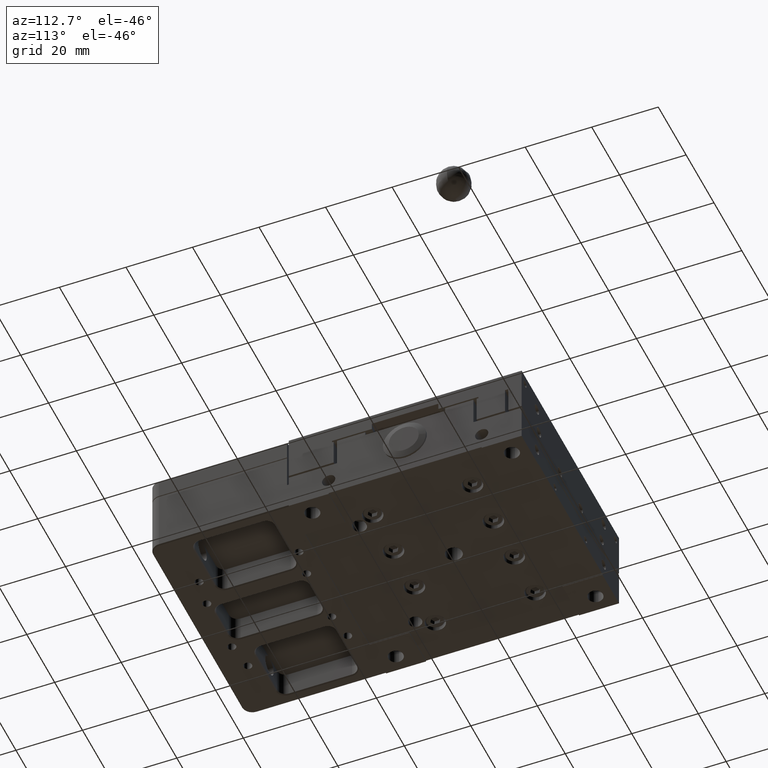
[diagram: clean part render]
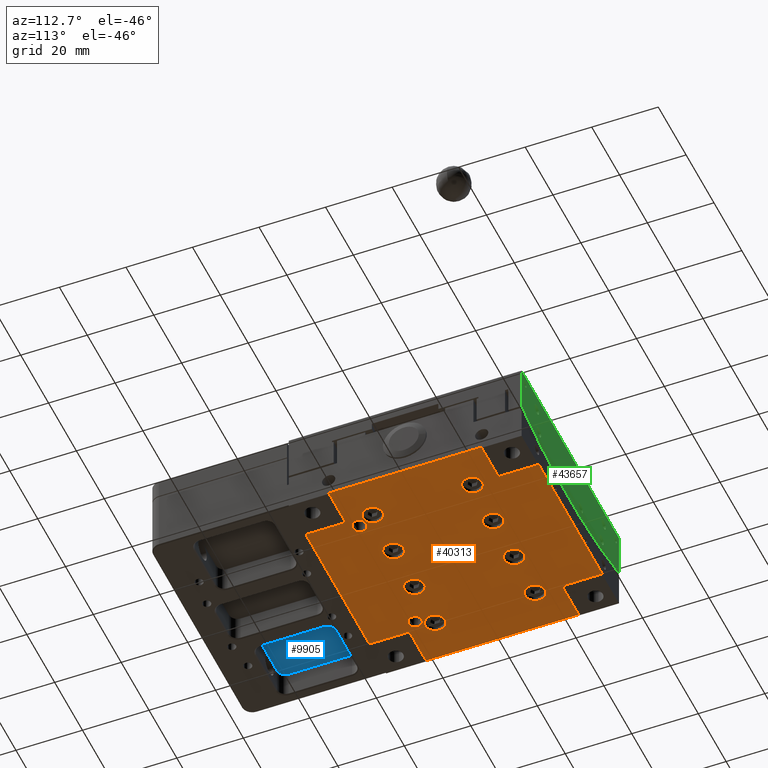
[diagram: same view with three faces highlighted in distinct colors, each labeled with its STEP entity id]
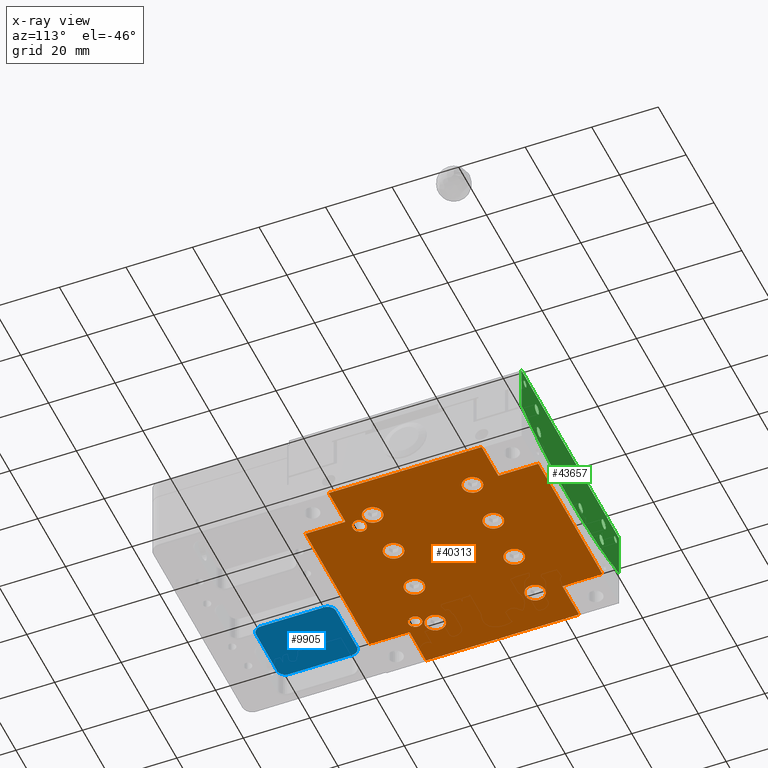
[diagram: x-ray of the same camera — body ghosted, the three highlighted faces saturated]
A machine part, auxiliary view with three faces highlighted in distinct colors.
The next image is the same camera in x-ray (body ghosted, the three faces saturated) — at least one of them is partly hidden behind the body in this view.
Their STEP definitions:

[orange] entity #40313 — the highlighted planar face has unit normal (0, 0, -1).
#13 = CARTESIAN_POINT ( 'NONE',  ( 22.99999995231683800, 35.00000000000000000, 0.3000000000000001000 ) ) ;
#101 = EDGE_LOOP ( 'NONE', ( #70234, #1774 ) ) ;
#223 = EDGE_LOOP ( 'NONE', ( #36987, #15831 ) ) ;
#718 = CARTESIAN_POINT ( 'NONE',  ( 7.500000000000000000, -15.00000000000000000, 0.3000000000000000400 ) ) ;
#1053 = ORIENTED_EDGE ( 'NONE', *, *, #77049, .F. ) ;
#1384 = ORIENTED_EDGE ( 'NONE', *, *, #79097, .F. ) ;
#1708 = ORIENTED_EDGE ( 'NONE', *, *, #10360, .F. ) ;
#1774 = ORIENTED_EDGE ( 'NONE', *, *, #6002, .F. ) ;
#1913 = CARTESIAN_POINT ( 'NONE',  ( 35.00000000000000000, 23.00000000000000000, 0.3000000000000008200 ) ) ;
#2263 = DIRECTION ( 'NONE',  ( 1.000000000000000000, 0.0000000000000000000, 0.0000000000000000000 ) ) ;
#2513 = AXIS2_PLACEMENT_3D ( 'NONE', #80586, #41478, #2263 ) ;
#2934 = ORIENTED_EDGE ( 'NONE', *, *, #78501, .F. ) ;
#3202 = EDGE_CURVE ( 'NONE', #74426, #28322, #81244, .T. ) ;
#3409 = VECTOR ( 'NONE', #82227, 1000.000000000000000 ) ;
#3435 = VERTEX_POINT ( 'NONE', #75863 ) ;
#3595 = ORIENTED_EDGE ( 'NONE', *, *, #37338, .F. ) ;
#3908 = DIRECTION ( 'NONE',  ( 1.000000000000000000, 0.0000000000000000000, 0.0000000000000000000 ) ) ;
#4968 = LINE ( 'NONE', #34351, #22397 ) ;
#5285 = CARTESIAN_POINT ( 'NONE',  ( -10.50000000000000200, 15.00000000000000000, 0.3000000000000000400 ) ) ;
#5490 = DIRECTION ( 'NONE',  ( 0.0000000000000000000, -1.000000000000000000, 0.0000000000000000000 ) ) ;
#5593 = EDGE_CURVE ( 'NONE', #13600, #77717, #65010, .T. ) ;
#6002 = EDGE_CURVE ( 'NONE', #80857, #10327, #70997, .T. ) ;
#6695 = VERTEX_POINT ( 'NONE', #44490 ) ;
#7048 = CIRCLE ( 'NONE', #37797, 1.999999999999998200 ) ;
#7141 = VERTEX_POINT ( 'NONE', #58052 ) ;
#7230 = PLANE ( 'NONE',  #69119 ) ;
#7268 = DIRECTION ( 'NONE',  ( 1.000000000000000000, 0.0000000000000000000, 0.0000000000000000000 ) ) ;
#7289 = CARTESIAN_POINT ( 'NONE',  ( -19.50000000000000000, -15.00000000000000000, 0.3000000000000000400 ) ) ;
#7503 = EDGE_CURVE ( 'NONE', #35767, #56087, #14414, .T. ) ;
#7900 = DIRECTION ( 'NONE',  ( 0.0000000000000000000, 0.0000000000000000000, 1.000000000000000000 ) ) ;
#8075 = LINE ( 'NONE', #39262, #23474 ) ;
#8108 = CIRCLE ( 'NONE', #27560, 2.999999999999999100 ) ;
#8131 = EDGE_CURVE ( 'NONE', #7141, #30030, #8075, .T. ) ;
#8252 = AXIS2_PLACEMENT_3D ( 'NONE', #73024, #33932, #79638 ) ;
#8405 = CIRCLE ( 'NONE', #22085, 3.000000000000002700 ) ;
#9901 = ORIENTED_EDGE ( 'NONE', *, *, #32201, .F. ) ;
#9916 = LINE ( 'NONE', #26985, #44719 ) ;
#10057 = LINE ( 'NONE', #50277, #77544 ) ;
#10237 = LINE ( 'NONE', #24759, #77728 ) ;
#10327 = VERTEX_POINT ( 'NONE', #58825 ) ;
#10360 = EDGE_CURVE ( 'NONE', #67273, #19604, #58888, .T. ) ;
#10371 = DIRECTION ( 'NONE',  ( -0.0000000000000000000, -0.0000000000000000000, -1.000000000000000000 ) ) ;
#10387 = CIRCLE ( 'NONE', #8252, 3.000000000000002700 ) ;
#11110 = DIRECTION ( 'NONE',  ( -1.000000000000000000, 0.0000000000000000000, 0.0000000000000000000 ) ) ;
#11438 = ORIENTED_EDGE ( 'NONE', *, *, #29188, .F. ) ;
#11713 = ORIENTED_EDGE ( 'NONE', *, *, #16800, .F. ) ;
#12147 = VERTEX_POINT ( 'NONE', #1913 ) ;
#12410 = DIRECTION ( 'NONE',  ( -0.0000000000000000000, -0.0000000000000000000, -1.000000000000000000 ) ) ;
#12582 = CARTESIAN_POINT ( 'NONE',  ( 20.25000031719999800, -18.00000000000000400, 0.3000000000000003800 ) ) ;
#12660 = CARTESIAN_POINT ( 'NONE',  ( 19.74999999999999600, -22.00000000000000000, 0.2999999999999997700 ) ) ;
#12918 = CARTESIAN_POINT ( 'NONE',  ( 35.00000000000000000, 36.39999999999999900, 0.3000000000000016500 ) ) ;
#12966 = CIRCLE ( 'NONE', #44089, 3.000000000000002700 ) ;
#13315 = VERTEX_POINT ( 'NONE', #55373 ) ;
#13600 = VERTEX_POINT ( 'NONE', #5285 ) ;
#13694 = DIRECTION ( 'NONE',  ( -1.000000000000000000, 0.0000000000000000000, 0.0000000000000000000 ) ) ;
#13796 = EDGE_CURVE ( 'NONE', #10327, #80857, #81492, .T. ) ;
#13985 = VERTEX_POINT ( 'NONE', #76037 ) ;
#14159 = AXIS2_PLACEMENT_3D ( 'NONE', #71325, #32208, #77880 ) ;
#14414 = CIRCLE ( 'NONE', #32949, 2.500000000000000000 ) ;
#15535 = CARTESIAN_POINT ( 'NONE',  ( -35.00000000000000000, -23.00000000000000000, 0.3000000000000000400 ) ) ;
#15831 = ORIENTED_EDGE ( 'NONE', *, *, #73987, .T. ) ;
#15871 = DIRECTION ( 'NONE',  ( -0.0000000000000000000, -0.0000000000000000000, -1.000000000000000000 ) ) ;
#16167 = CARTESIAN_POINT ( 'NONE',  ( -20.00000000000000000, -20.00000000000000000, 0.3000000000000000400 ) ) ;
#16228 = VERTEX_POINT ( 'NONE', #54804 ) ;
#16362 = DIRECTION ( 'NONE',  ( -0.0000000000000000000, -0.0000000000000000000, -1.000000000000000000 ) ) ;
#16535 = FACE_BOUND ( 'NONE', #81110, .T. ) ;
#16542 = VERTEX_POINT ( 'NONE', #7289 ) ;
#16548 = VERTEX_POINT ( 'NONE', #40209 ) ;
#16800 = EDGE_CURVE ( 'NONE', #73803, #35531, #8405, .T. ) ;
#17239 = EDGE_LOOP ( 'NONE', ( #2934, #11438 ) ) ;
#17326 = AXIS2_PLACEMENT_3D ( 'NONE', #58650, #19522, #65257 ) ;
#17768 = EDGE_CURVE ( 'NONE', #20114, #41619, #44935, .T. ) ;
#18153 = ORIENTED_EDGE ( 'NONE', *, *, #7503, .F. ) ;
#18587 = FACE_BOUND ( 'NONE', #223, .T. ) ;
#18590 = CARTESIAN_POINT ( 'NONE',  ( -18.00000000000000400, -20.00000000000000000, 0.3000000000000000400 ) ) ;
#18955 = CIRCLE ( 'NONE', #62914, 2.999999999999999100 ) ;
#19522 = DIRECTION ( 'NONE',  ( 0.0000000000000000000, 2.168404344971008600E-016, -1.000000000000000000 ) ) ;
#19604 = VERTEX_POINT ( 'NONE', #12582 ) ;
#19921 = ORIENTED_EDGE ( 'NONE', *, *, #46471, .F. ) ;
#20114 = VERTEX_POINT ( 'NONE', #18590 ) ;
#20146 = CARTESIAN_POINT ( 'NONE',  ( -22.99999995231683400, -23.00000000000000000, 0.3000000000000001000 ) ) ;
#20639 = CARTESIAN_POINT ( 'NONE',  ( -4.499999999999997300, 15.00000000000000000, 0.3000000000000000400 ) ) ;
#21132 = CIRCLE ( 'NONE', #27972, 2.000000000000001800 ) ;
#22038 = EDGE_LOOP ( 'NONE', ( #74035, #60995 ) ) ;
#22039 = CARTESIAN_POINT ( 'NONE',  ( 22.99999995231683400, 23.00000000000000000, 0.3000000000000001000 ) ) ;
#22085 = AXIS2_PLACEMENT_3D ( 'NONE', #49522, #10371, #56140 ) ;
#22392 = AXIS2_PLACEMENT_3D ( 'NONE', #718, #46466, #7268 ) ;
#22397 = VECTOR ( 'NONE', #73465, 1000.000000000000000 ) ;
#22662 = DIRECTION ( 'NONE',  ( -0.0000000000000000000, -0.0000000000000000000, -1.000000000000000000 ) ) ;
#22676 = ORIENTED_EDGE ( 'NONE', *, *, #40612, .F. ) ;
#22778 = DIRECTION ( 'NONE',  ( 1.000000000000000000, 0.0000000000000000000, 0.0000000000000000000 ) ) ;
#22855 = AXIS2_PLACEMENT_3D ( 'NONE', #67525, #28437, #74107 ) ;
#23474 = VECTOR ( 'NONE', #71791, 1000.000000000000000 ) ;
#24386 = VECTOR ( 'NONE', #39230, 1000.000000000000000 ) ;
#24759 = CARTESIAN_POINT ( 'NONE',  ( 22.75999999999999800, -22.99999995231683400, 0.3000000000000001600 ) ) ;
#25675 = DIRECTION ( 'NONE',  ( -0.0000000000000000000, -0.0000000000000000000, -1.000000000000000000 ) ) ;
#26904 = CARTESIAN_POINT ( 'NONE',  ( 10.49999999999999800, -15.00000000000000000, 0.3000000000000000400 ) ) ;
#26985 = CARTESIAN_POINT ( 'NONE',  ( -22.75999999999999800, 22.99999995231683400, 0.3000000000000001600 ) ) ;
#27560 = AXIS2_PLACEMENT_3D ( 'NONE', #82196, #43091, #3908 ) ;
#27972 = AXIS2_PLACEMENT_3D ( 'NONE', #75744, #36655, #82317 ) ;
#28070 = ORIENTED_EDGE ( 'NONE', *, *, #38340, .F. ) ;
#28322 = VERTEX_POINT ( 'NONE', #12660 ) ;
#28336 = EDGE_CURVE ( 'NONE', #19604, #74426, #51388, .T. ) ;
#28437 = DIRECTION ( 'NONE',  ( -0.0000000000000000000, -0.0000000000000000000, -1.000000000000000000 ) ) ;
#28600 = AXIS2_PLACEMENT_3D ( 'NONE', #55038, #15871, #61587 ) ;
#28799 = CARTESIAN_POINT ( 'NONE',  ( 0.0000000000000000000, 0.0000000000000000000, 0.2999999999999999300 ) ) ;
#29188 = EDGE_CURVE ( 'NONE', #82226, #62731, #8108, .T. ) ;
#29653 = CARTESIAN_POINT ( 'NONE',  ( -7.500000000000000000, 15.00000000000000000, 0.3000000000000000400 ) ) ;
#29800 = EDGE_CURVE ( 'NONE', #16548, #50599, #82563, .T. ) ;
#29946 = VERTEX_POINT ( 'NONE', #20146 ) ;
#30030 = VERTEX_POINT ( 'NONE', #15535 ) ;
#30578 = VERTEX_POINT ( 'NONE', #22039 ) ;
#30785 = CARTESIAN_POINT ( 'NONE',  ( 0.0000000000000000000, 0.0000000000000000000, 0.2999999999999999300 ) ) ;
#30818 = CARTESIAN_POINT ( 'NONE',  ( 4.500000000000000900, -15.00000000000000000, 0.3000000000000000400 ) ) ;
#31140 = CARTESIAN_POINT ( 'NONE',  ( -10.49999999999999800, -15.00000000000000000, 0.3000000000000000400 ) ) ;
#31787 = CARTESIAN_POINT ( 'NONE',  ( -22.99999995231683100, -35.00000000000000000, 0.3000000000000001000 ) ) ;
#31887 = FACE_OUTER_BOUND ( 'NONE', #72584, .T. ) ;
#32201 = EDGE_CURVE ( 'NONE', #68125, #66516, #10057, .T. ) ;
#32208 = DIRECTION ( 'NONE',  ( -0.0000000000000000000, -0.0000000000000000000, -1.000000000000000000 ) ) ;
#32294 = DIRECTION ( 'NONE',  ( -0.0000000000000000000, -0.0000000000000000000, -1.000000000000000000 ) ) ;
#32593 = EDGE_CURVE ( 'NONE', #6695, #16542, #53990, .T. ) ;
#32949 = AXIS2_PLACEMENT_3D ( 'NONE', #28799, #74475, #35377 ) ;
#33237 = EDGE_CURVE ( 'NONE', #16542, #6695, #18955, .T. ) ;
#33552 = DIRECTION ( 'NONE',  ( -1.000000000000000000, -1.273898282150176200E-021, -2.024918001562326200E-028 ) ) ;
#33572 = DIRECTION ( 'NONE',  ( 0.0000000000000000000, 0.0000000000000000000, -1.000000000000000000 ) ) ;
#33932 = DIRECTION ( 'NONE',  ( -0.0000000000000000000, -0.0000000000000000000, -1.000000000000000000 ) ) ;
#33953 = FACE_BOUND ( 'NONE', #46861, .T. ) ;
#34351 = CARTESIAN_POINT ( 'NONE',  ( -22.99999995231683400, -22.75999999999999800, 0.3000000000000001600 ) ) ;
#34720 = VERTEX_POINT ( 'NONE', #31787 ) ;
#34810 = CARTESIAN_POINT ( 'NONE',  ( -22.50000000000000000, -15.00000000000000000, 0.3000000000000000400 ) ) ;
#35158 = VECTOR ( 'NONE', #49842, 1000.000000000000000 ) ;
#35377 = DIRECTION ( 'NONE',  ( -1.000000000000000000, 0.0000000000000000000, 0.0000000000000000000 ) ) ;
#35500 = CIRCLE ( 'NONE', #14159, 2.999999999999999100 ) ;
#35531 = VERTEX_POINT ( 'NONE', #49289 ) ;
#35767 = VERTEX_POINT ( 'NONE', #72129 ) ;
#36009 = FACE_BOUND ( 'NONE', #84500, .T. ) ;
#36240 = DIRECTION ( 'NONE',  ( 1.000000000000000000, 0.0000000000000000000, 0.0000000000000000000 ) ) ;
#36655 = DIRECTION ( 'NONE',  ( 0.0000000000000000000, 2.168404344971008600E-016, -1.000000000000000000 ) ) ;
#36801 = DIRECTION ( 'NONE',  ( -1.000000000000000000, 0.0000000000000000000, 0.0000000000000000000 ) ) ;
#36987 = ORIENTED_EDGE ( 'NONE', *, *, #71334, .T. ) ;
#37120 = CIRCLE ( 'NONE', #44803, 3.000000000000002700 ) ;
#37218 = LINE ( 'NONE', #75825, #35158 ) ;
#37265 = ORIENTED_EDGE ( 'NONE', *, *, #81819, .F. ) ;
#37338 = EDGE_CURVE ( 'NONE', #77717, #13600, #37120, .T. ) ;
#37352 = DIRECTION ( 'NONE',  ( -1.000000000000000000, 0.0000000000000000000, 0.0000000000000000000 ) ) ;
#37797 = AXIS2_PLACEMENT_3D ( 'NONE', #16167, #61895, #22778 ) ;
#37992 = CIRCLE ( 'NONE', #28600, 3.000000000000002700 ) ;
#38340 = EDGE_CURVE ( 'NONE', #41619, #20114, #7048, .T. ) ;
#38442 = CARTESIAN_POINT ( 'NONE',  ( 22.50000000000000000, 15.00000000000000000, 0.3000000000000000400 ) ) ;
#38682 = CARTESIAN_POINT ( 'NONE',  ( -2.500000000000000000, 0.0000000000000000000, 0.2999999999999999300 ) ) ;
#38785 = CARTESIAN_POINT ( 'NONE',  ( 25.50000000000000000, -15.00000000000000000, 0.3000000000000000400 ) ) ;
#39230 = DIRECTION ( 'NONE',  ( -0.0000000000000000000, 1.000000000000000000, -0.0000000000000000000 ) ) ;
#39262 = CARTESIAN_POINT ( 'NONE',  ( -35.00000000000000000, -36.39999999999999900, 0.3000000000000000400 ) ) ;
#39444 = DIRECTION ( 'NONE',  ( 1.000000000000000000, 0.0000000000000000000, 0.0000000000000000000 ) ) ;
#40209 = CARTESIAN_POINT ( 'NONE',  ( 25.50000000000000400, 15.00000000000000000, 0.3000000000000000400 ) ) ;
#40313 = ADVANCED_FACE ( 'NONE', ( #53378, #36009, #70721, #18587, #68634, #51283, #33953, #16535, #83976, #66625, #49225, #31887 ), #7230, .T. ) ;
#40612 = EDGE_CURVE ( 'NONE', #30578, #68125, #75712, .T. ) ;
#41386 = DIRECTION ( 'NONE',  ( 1.000000000000000000, 0.0000000000000000000, 0.0000000000000000000 ) ) ;
#41409 = VECTOR ( 'NONE', #5490, 1000.000000000000000 ) ;
#41478 = DIRECTION ( 'NONE',  ( -0.0000000000000000000, -0.0000000000000000000, -1.000000000000000000 ) ) ;
#41538 = VECTOR ( 'NONE', #39444, 1000.000000000000000 ) ;
#41619 = VERTEX_POINT ( 'NONE', #76813 ) ;
#42850 = LINE ( 'NONE', #62672, #60232 ) ;
#43091 = DIRECTION ( 'NONE',  ( -0.0000000000000000000, -0.0000000000000000000, -1.000000000000000000 ) ) ;
#43113 = CARTESIAN_POINT ( 'NONE',  ( 36.39999999999999900, -35.00000000000000000, 0.2999999999999999300 ) ) ;
#43240 = CIRCLE ( 'NONE', #66385, 2.500000000000000000 ) ;
#43810 = LINE ( 'NONE', #12918, #24386 ) ;
#44089 = AXIS2_PLACEMENT_3D ( 'NONE', #51561, #12410, #58133 ) ;
#44431 = ORIENTED_EDGE ( 'NONE', *, *, #3202, .F. ) ;
#44490 = CARTESIAN_POINT ( 'NONE',  ( -25.50000000000000000, -15.00000000000000000, 0.3000000000000000400 ) ) ;
#44557 = AXIS2_PLACEMENT_3D ( 'NONE', #38442, #84115, #45007 ) ;
#44648 = ORIENTED_EDGE ( 'NONE', *, *, #46323, .F. ) ;
#44719 = VECTOR ( 'NONE', #33552, 1000.000000000000000 ) ;
#44803 = AXIS2_PLACEMENT_3D ( 'NONE', #64814, #25675, #71397 ) ;
#44931 = VECTOR ( 'NONE', #36801, 1000.000000000000000 ) ;
#44935 = CIRCLE ( 'NONE', #75201, 1.999999999999998200 ) ;
#45007 = DIRECTION ( 'NONE',  ( 1.000000000000000000, 0.0000000000000000000, 0.0000000000000000000 ) ) ;
#45099 = ORIENTED_EDGE ( 'NONE', *, *, #68350, .F. ) ;
#45917 = ORIENTED_EDGE ( 'NONE', *, *, #28336, .F. ) ;
#46006 = CARTESIAN_POINT ( 'NONE',  ( 19.58236183703000000, -18.00000000000000400, 0.3000000000000000400 ) ) ;
#46323 = EDGE_CURVE ( 'NONE', #35531, #73803, #10387, .T. ) ;
#46466 = DIRECTION ( 'NONE',  ( 0.0000000000000000000, 0.0000000000000000000, 1.000000000000000000 ) ) ;
#46471 = EDGE_CURVE ( 'NONE', #3435, #66280, #37992, .T. ) ;
#46580 = CARTESIAN_POINT ( 'NONE',  ( 4.499999999999997300, 15.00000000000000000, 0.3000000000000000400 ) ) ;
#46861 = EDGE_LOOP ( 'NONE', ( #68006, #45099 ) ) ;
#47013 = ORIENTED_EDGE ( 'NONE', *, *, #81336, .F. ) ;
#47070 = CARTESIAN_POINT ( 'NONE',  ( 7.500000000000000000, -15.00000000000000000, 0.3000000000000000400 ) ) ;
#47540 = AXIS2_PLACEMENT_3D ( 'NONE', #34810, #80501, #41386 ) ;
#48778 = CARTESIAN_POINT ( 'NONE',  ( 35.24000000056000200, 23.00000000000000000, 0.3000000000000000400 ) ) ;
#48919 = EDGE_CURVE ( 'NONE', #12147, #30578, #60268, .T. ) ;
#48994 = CARTESIAN_POINT ( 'NONE',  ( 19.50000000000000000, -15.00000000000000000, 0.3000000000000000400 ) ) ;
#49225 = FACE_BOUND ( 'NONE', #22038, .T. ) ;
#49289 = CARTESIAN_POINT ( 'NONE',  ( -19.49999999999999600, 15.00000000000000000, 0.3000000000000000400 ) ) ;
#49522 = CARTESIAN_POINT ( 'NONE',  ( -22.50000000000000000, 15.00000000000000000, 0.3000000000000000400 ) ) ;
#49709 = EDGE_CURVE ( 'NONE', #16228, #12147, #43810, .T. ) ;
#49767 = DIRECTION ( 'NONE',  ( -1.273898282150176200E-021, 1.000000000000000000, -2.024918001562326200E-028 ) ) ;
#49842 = DIRECTION ( 'NONE',  ( 0.0000000000000000000, 1.000000000000000000, 0.0000000000000000000 ) ) ;
#50277 = CARTESIAN_POINT ( 'NONE',  ( 36.39999999999999900, 35.00000000000000000, 0.2999999999999999300 ) ) ;
#50323 = AXIS2_PLACEMENT_3D ( 'NONE', #29653, #75318, #36240 ) ;
#50599 = VERTEX_POINT ( 'NONE', #74463 ) ;
#51283 = FACE_BOUND ( 'NONE', #75686, .T. ) ;
#51388 = CIRCLE ( 'NONE', #17326, 2.000000000000001800 ) ;
#51561 = CARTESIAN_POINT ( 'NONE',  ( 7.500000000000000000, 15.00000000000000000, 0.3000000000000000400 ) ) ;
#51819 = CIRCLE ( 'NONE', #22392, 2.999999999999999100 ) ;
#53033 = CIRCLE ( 'NONE', #2513, 3.000000000000002700 ) ;
#53378 = FACE_BOUND ( 'NONE', #68453, .T. ) ;
#53644 = DIRECTION ( 'NONE',  ( 1.000000000000000000, 0.0000000000000000000, 0.0000000000000000000 ) ) ;
#53990 = CIRCLE ( 'NONE', #47540, 2.999999999999999100 ) ;
#54368 = ORIENTED_EDGE ( 'NONE', *, *, #83817, .F. ) ;
#54804 = CARTESIAN_POINT ( 'NONE',  ( 35.00000000000000000, -22.99999995231683100, 0.3000000000000009300 ) ) ;
#55038 = CARTESIAN_POINT ( 'NONE',  ( 7.500000000000000000, 15.00000000000000000, 0.3000000000000000400 ) ) ;
#55373 = CARTESIAN_POINT ( 'NONE',  ( 23.00000000000000000, -22.99999995231683400, 0.3000000000000001000 ) ) ;
#55402 = VERTEX_POINT ( 'NONE', #30818 ) ;
#55533 = CARTESIAN_POINT ( 'NONE',  ( -22.50000000000000000, -15.00000000000000000, 0.3000000000000000400 ) ) ;
#56087 = VERTEX_POINT ( 'NONE', #38682 ) ;
#56116 = DIRECTION ( 'NONE',  ( 1.000000000000000000, 0.0000000000000000000, 0.0000000000000000000 ) ) ;
#56140 = DIRECTION ( 'NONE',  ( 1.000000000000000000, 0.0000000000000000000, 0.0000000000000000000 ) ) ;
#57612 = CARTESIAN_POINT ( 'NONE',  ( -25.50000000000000400, 15.00000000000000000, 0.3000000000000000400 ) ) ;
#58052 = CARTESIAN_POINT ( 'NONE',  ( -35.00000000000000000, 22.99999997616000200, 0.3000000000000000400 ) ) ;
#58133 = DIRECTION ( 'NONE',  ( 1.000000000000000000, 0.0000000000000000000, 0.0000000000000000000 ) ) ;
#58334 = VECTOR ( 'NONE', #49767, 1000.000000000000000 ) ;
#58650 = CARTESIAN_POINT ( 'NONE',  ( 20.25000031719999800, -20.00000000000000000, 0.2999999999999999300 ) ) ;
#58748 = LINE ( 'NONE', #83773, #41409 ) ;
#58825 = CARTESIAN_POINT ( 'NONE',  ( -4.500000000000000900, -15.00000000000000000, 0.3000000000000000400 ) ) ;
#58888 = LINE ( 'NONE', #46006, #41538 ) ;
#59186 = CARTESIAN_POINT ( 'NONE',  ( 20.25000031719999800, -22.00000000000000000, 0.2999999999999992700 ) ) ;
#60140 = ORIENTED_EDGE ( 'NONE', *, *, #84059, .F. ) ;
#60232 = VECTOR ( 'NONE', #56116, 1000.000000000000000 ) ;
#60268 = LINE ( 'NONE', #48778, #44931 ) ;
#60995 = ORIENTED_EDGE ( 'NONE', *, *, #32593, .F. ) ;
#61587 = DIRECTION ( 'NONE',  ( 1.000000000000000000, 0.0000000000000000000, 0.0000000000000000000 ) ) ;
#61777 = CARTESIAN_POINT ( 'NONE',  ( -20.00000000000000000, -20.00000000000000000, 0.3000000000000000400 ) ) ;
#61895 = DIRECTION ( 'NONE',  ( -0.0000000000000000000, -0.0000000000000000000, -1.000000000000000000 ) ) ;
#62106 = DIRECTION ( 'NONE',  ( 1.000000000000000000, 0.0000000000000000000, 0.0000000000000000000 ) ) ;
#62672 = CARTESIAN_POINT ( 'NONE',  ( -35.24000000056000200, -23.00000000000000000, 0.3000000000000000400 ) ) ;
#62731 = VERTEX_POINT ( 'NONE', #38785 ) ;
#62914 = AXIS2_PLACEMENT_3D ( 'NONE', #55533, #16362, #62106 ) ;
#63725 = VERTEX_POINT ( 'NONE', #70885 ) ;
#64609 = ORIENTED_EDGE ( 'NONE', *, *, #76329, .F. ) ;
#64697 = EDGE_CURVE ( 'NONE', #13985, #13315, #37218, .T. ) ;
#64814 = CARTESIAN_POINT ( 'NONE',  ( -7.500000000000000000, 15.00000000000000000, 0.3000000000000000400 ) ) ;
#65010 = CIRCLE ( 'NONE', #50323, 3.000000000000002700 ) ;
#65257 = DIRECTION ( 'NONE',  ( 0.0000000000000000000, 1.000000000000000000, 2.168404344971006900E-016 ) ) ;
#65268 = AXIS2_PLACEMENT_3D ( 'NONE', #47070, #7900, #53644 ) ;
#65943 = CARTESIAN_POINT ( 'NONE',  ( 20.41763848017000500, -22.00000000000000000, 0.3000000000000000400 ) ) ;
#66280 = VERTEX_POINT ( 'NONE', #46580 ) ;
#66385 = AXIS2_PLACEMENT_3D ( 'NONE', #30785, #76445, #37352 ) ;
#66516 = VERTEX_POINT ( 'NONE', #84201 ) ;
#66625 = FACE_BOUND ( 'NONE', #17239, .T. ) ;
#67273 = VERTEX_POINT ( 'NONE', #74622 ) ;
#67525 = CARTESIAN_POINT ( 'NONE',  ( -7.500000000000000000, -15.00000000000000000, 0.3000000000000000400 ) ) ;
#67922 = EDGE_CURVE ( 'NONE', #30030, #29946, #42850, .T. ) ;
#68006 = ORIENTED_EDGE ( 'NONE', *, *, #29800, .F. ) ;
#68125 = VERTEX_POINT ( 'NONE', #13 ) ;
#68304 = EDGE_CURVE ( 'NONE', #29946, #34720, #4968, .T. ) ;
#68324 = DIRECTION ( 'NONE',  ( 1.000000000000000000, 0.0000000000000000000, 0.0000000000000000000 ) ) ;
#68350 = EDGE_CURVE ( 'NONE', #50599, #16548, #53033, .T. ) ;
#68453 = EDGE_LOOP ( 'NONE', ( #60140, #44431, #45917, #1708 ) ) ;
#68634 = FACE_BOUND ( 'NONE', #101, .T. ) ;
#68902 = ORIENTED_EDGE ( 'NONE', *, *, #17768, .F. ) ;
#69119 = AXIS2_PLACEMENT_3D ( 'NONE', #72692, #33572, #79258 ) ;
#69610 = CIRCLE ( 'NONE', #65268, 2.999999999999999100 ) ;
#70092 = ORIENTED_EDGE ( 'NONE', *, *, #64697, .F. ) ;
#70234 = ORIENTED_EDGE ( 'NONE', *, *, #13796, .F. ) ;
#70457 = DIRECTION ( 'NONE',  ( 1.000000000000000000, 1.273898282150176200E-021, -2.024918001562326200E-028 ) ) ;
#70721 = FACE_BOUND ( 'NONE', #73957, .T. ) ;
#70885 = CARTESIAN_POINT ( 'NONE',  ( -23.00000000000000000, 22.99999995231683400, 0.3000000000000001000 ) ) ;
#70906 = LINE ( 'NONE', #43113, #3409 ) ;
#70997 = CIRCLE ( 'NONE', #75439, 2.999999999999999100 ) ;
#71037 = EDGE_LOOP ( 'NONE', ( #68902, #28070 ) ) ;
#71325 = CARTESIAN_POINT ( 'NONE',  ( 22.50000000000000000, -15.00000000000000000, 0.3000000000000000400 ) ) ;
#71334 = EDGE_CURVE ( 'NONE', #72970, #55402, #69610, .T. ) ;
#71397 = DIRECTION ( 'NONE',  ( 1.000000000000000000, 0.0000000000000000000, 0.0000000000000000000 ) ) ;
#71403 = CARTESIAN_POINT ( 'NONE',  ( -7.500000000000000000, -15.00000000000000000, 0.3000000000000000400 ) ) ;
#71791 = DIRECTION ( 'NONE',  ( -0.0000000000000000000, -1.000000000000000000, 0.0000000000000000000 ) ) ;
#72129 = CARTESIAN_POINT ( 'NONE',  ( 2.500000000000000000, 3.061616997868383100E-016, 0.2999999999999999300 ) ) ;
#72584 = EDGE_LOOP ( 'NONE', ( #9901, #22676, #76327, #80248, #1053, #70092, #37265, #77066, #84151, #78560, #54368, #1384 ) ) ;
#72692 = CARTESIAN_POINT ( 'NONE',  ( 36.39999999999999900, -36.39999999999999900, 0.3000000000000000400 ) ) ;
#72970 = VERTEX_POINT ( 'NONE', #26904 ) ;
#73024 = CARTESIAN_POINT ( 'NONE',  ( -22.50000000000000000, 15.00000000000000000, 0.3000000000000000400 ) ) ;
#73465 = DIRECTION ( 'NONE',  ( 1.273898282150176200E-021, -1.000000000000000000, -2.024918001562326200E-028 ) ) ;
#73803 = VERTEX_POINT ( 'NONE', #57612 ) ;
#73957 = EDGE_LOOP ( 'NONE', ( #19921, #47013 ) ) ;
#73987 = EDGE_CURVE ( 'NONE', #55402, #72970, #51819, .T. ) ;
#74035 = ORIENTED_EDGE ( 'NONE', *, *, #33237, .F. ) ;
#74107 = DIRECTION ( 'NONE',  ( 1.000000000000000000, 0.0000000000000000000, 0.0000000000000000000 ) ) ;
#74426 = VERTEX_POINT ( 'NONE', #59186 ) ;
#74463 = CARTESIAN_POINT ( 'NONE',  ( 19.49999999999999600, 15.00000000000000000, 0.3000000000000000400 ) ) ;
#74475 = DIRECTION ( 'NONE',  ( 0.0000000000000000000, 0.0000000000000000000, -1.000000000000000000 ) ) ;
#74622 = CARTESIAN_POINT ( 'NONE',  ( 19.75000000000000000, -18.00000000000000400, 0.3000000000000003800 ) ) ;
#75201 = AXIS2_PLACEMENT_3D ( 'NONE', #61777, #22662, #68324 ) ;
#75318 = DIRECTION ( 'NONE',  ( -0.0000000000000000000, -0.0000000000000000000, -1.000000000000000000 ) ) ;
#75439 = AXIS2_PLACEMENT_3D ( 'NONE', #71403, #32294, #77957 ) ;
#75686 = EDGE_LOOP ( 'NONE', ( #64609, #18153 ) ) ;
#75712 = LINE ( 'NONE', #75754, #58334 ) ;
#75744 = CARTESIAN_POINT ( 'NONE',  ( 19.75000000000000000, -20.00000000000000000, 0.2999999999999999300 ) ) ;
#75754 = CARTESIAN_POINT ( 'NONE',  ( 22.99999995231683400, 22.75999999999999800, 0.3000000000000001600 ) ) ;
#75825 = CARTESIAN_POINT ( 'NONE',  ( 23.00000000000000000, -35.24000000056000200, 0.3000000000000000400 ) ) ;
#75863 = CARTESIAN_POINT ( 'NONE',  ( 10.50000000000000200, 15.00000000000000000, 0.3000000000000000400 ) ) ;
#76037 = CARTESIAN_POINT ( 'NONE',  ( 23.00000000000000000, -35.00000000000000000, 0.2999999999999999900 ) ) ;
#76327 = ORIENTED_EDGE ( 'NONE', *, *, #48919, .F. ) ;
#76329 = EDGE_CURVE ( 'NONE', #56087, #35767, #43240, .T. ) ;
#76445 = DIRECTION ( 'NONE',  ( 0.0000000000000000000, 0.0000000000000000000, -1.000000000000000000 ) ) ;
#76813 = CARTESIAN_POINT ( 'NONE',  ( -22.00000000000000000, -20.00000000000000000, 0.3000000000000000400 ) ) ;
#77049 = EDGE_CURVE ( 'NONE', #13315, #16228, #10237, .T. ) ;
#77066 = ORIENTED_EDGE ( 'NONE', *, *, #68304, .F. ) ;
#77544 = VECTOR ( 'NONE', #11110, 1000.000000000000000 ) ;
#77717 = VERTEX_POINT ( 'NONE', #20639 ) ;
#77728 = VECTOR ( 'NONE', #70457, 1000.000000000000000 ) ;
#77880 = DIRECTION ( 'NONE',  ( 1.000000000000000000, 0.0000000000000000000, 0.0000000000000000000 ) ) ;
#77957 = DIRECTION ( 'NONE',  ( 1.000000000000000000, 0.0000000000000000000, 0.0000000000000000000 ) ) ;
#78501 = EDGE_CURVE ( 'NONE', #62731, #82226, #35500, .T. ) ;
#78560 = ORIENTED_EDGE ( 'NONE', *, *, #8131, .F. ) ;
#79097 = EDGE_CURVE ( 'NONE', #66516, #63725, #58748, .T. ) ;
#79197 = VECTOR ( 'NONE', #13694, 1000.000000000000000 ) ;
#79258 = DIRECTION ( 'NONE',  ( -1.000000000000000000, 0.0000000000000000000, 0.0000000000000000000 ) ) ;
#79638 = DIRECTION ( 'NONE',  ( 1.000000000000000000, 0.0000000000000000000, 0.0000000000000000000 ) ) ;
#80248 = ORIENTED_EDGE ( 'NONE', *, *, #49709, .F. ) ;
#80276 = ORIENTED_EDGE ( 'NONE', *, *, #5593, .F. ) ;
#80501 = DIRECTION ( 'NONE',  ( -0.0000000000000000000, -0.0000000000000000000, -1.000000000000000000 ) ) ;
#80586 = CARTESIAN_POINT ( 'NONE',  ( 22.50000000000000000, 15.00000000000000000, 0.3000000000000000400 ) ) ;
#80857 = VERTEX_POINT ( 'NONE', #31140 ) ;
#81110 = EDGE_LOOP ( 'NONE', ( #44648, #11713 ) ) ;
#81244 = LINE ( 'NONE', #65943, #79197 ) ;
#81336 = EDGE_CURVE ( 'NONE', #66280, #3435, #12966, .T. ) ;
#81492 = CIRCLE ( 'NONE', #22855, 2.999999999999999100 ) ;
#81819 = EDGE_CURVE ( 'NONE', #34720, #13985, #70906, .T. ) ;
#82196 = CARTESIAN_POINT ( 'NONE',  ( 22.50000000000000000, -15.00000000000000000, 0.3000000000000000400 ) ) ;
#82226 = VERTEX_POINT ( 'NONE', #48994 ) ;
#82227 = DIRECTION ( 'NONE',  ( 1.000000000000000000, -0.0000000000000000000, -0.0000000000000000000 ) ) ;
#82317 = DIRECTION ( 'NONE',  ( 0.0000000000000000000, 1.000000000000000000, 2.168404344971006900E-016 ) ) ;
#82563 = CIRCLE ( 'NONE', #44557, 3.000000000000002700 ) ;
#83773 = CARTESIAN_POINT ( 'NONE',  ( -23.00000000000000000, 35.24000000056000200, 0.3000000000000000400 ) ) ;
#83817 = EDGE_CURVE ( 'NONE', #63725, #7141, #9916, .T. ) ;
#83976 = FACE_BOUND ( 'NONE', #71037, .T. ) ;
#84059 = EDGE_CURVE ( 'NONE', #28322, #67273, #21132, .T. ) ;
#84115 = DIRECTION ( 'NONE',  ( -0.0000000000000000000, -0.0000000000000000000, -1.000000000000000000 ) ) ;
#84151 = ORIENTED_EDGE ( 'NONE', *, *, #67922, .F. ) ;
#84201 = CARTESIAN_POINT ( 'NONE',  ( -23.00000000000000000, 35.00000000000000000, 0.2999999999999999300 ) ) ;
#84500 = EDGE_LOOP ( 'NONE', ( #3595, #80276 ) ) ;

[blue] entity #9905 — the highlighted planar face has unit normal (0, 0, -1).
#978 = CARTESIAN_POINT ( 'NONE',  ( -12.00000000000000000, -43.66828890035633000, 8.000000000000000000 ) ) ;
#1652 = VERTEX_POINT ( 'NONE', #34696 ) ;
#2555 = DIRECTION ( 'NONE',  ( 0.0000000000000000000, 0.0000000000000000000, -1.000000000000000000 ) ) ;
#2976 = CARTESIAN_POINT ( 'NONE',  ( -32.00000000000000000, -44.00000000803000700, 8.000000000000000000 ) ) ;
#4843 = FACE_OUTER_BOUND ( 'NONE', #36132, .T. ) ;
#5315 = CARTESIAN_POINT ( 'NONE',  ( -29.83132992389549900, -65.50000000000000000, 8.000000000000000000 ) ) ;
#5433 = CARTESIAN_POINT ( 'NONE',  ( -12.31696097739251700, -64.26268278931122800, 7.999999999999998200 ) ) ;
#9896 = LINE ( 'NONE', #26204, #42633 ) ;
#9905 = ADVANCED_FACE ( 'NONE', ( #4843 ), #80620, .T. ) ;
#10839 = EDGE_CURVE ( 'NONE', #57637, #77185, #54521, .T. ) ;
#11236 = EDGE_CURVE ( 'NONE', #75154, #57637, #11574, .T. ) ;
#11574 = LINE ( 'NONE', #62144, #70857 ) ;
#11895 = CARTESIAN_POINT ( 'NONE',  ( -29.50000000000000000, -65.50000000000000000, 8.000000000000000000 ) ) ;
#11945 = VERTEX_POINT ( 'NONE', #25690 ) ;
#12020 = CARTESIAN_POINT ( 'NONE',  ( -12.96634271536045800, -65.00197965372396400, 8.000000000000001800 ) ) ;
#12886 = EDGE_CURVE ( 'NONE', #33412, #1652, #45911, .T. ) ;
#13698 = EDGE_CURVE ( 'NONE', #1652, #68281, #33213, .T. ) ;
#14628 = VERTEX_POINT ( 'NONE', #25378 ) ;
#16144 = CARTESIAN_POINT ( 'NONE',  ( -31.93635864916927900, -43.34926564974561100, 8.000000000000000000 ) ) ;
#16579 = VECTOR ( 'NONE', #52282, 1000.000000000000000 ) ;
#18408 = CARTESIAN_POINT ( 'NONE',  ( -22.00000000000000000, -41.49999999999999300, 8.000000000000000000 ) ) ;
#18488 = CARTESIAN_POINT ( 'NONE',  ( -31.03355424826454700, -65.00187662674402100, 8.000000000000000000 ) ) ;
#18606 = CARTESIAN_POINT ( 'NONE',  ( -13.84938603881667500, -65.43656627658057800, 8.000000000000001800 ) ) ;
#18656 = CARTESIAN_POINT ( 'NONE',  ( -23.99999999999999600, -65.50000000000000000, 8.000000000000000000 ) ) ;
#18929 = CARTESIAN_POINT ( 'NONE',  ( -12.00000000000000000, -53.49999999999999300, 8.000000000000000000 ) ) ;
#20074 = EDGE_CURVE ( 'NONE', #14628, #75154, #66662, .T. ) ;
#21257 = CARTESIAN_POINT ( 'NONE',  ( -29.50000000000000000, -65.50000000000000000, 8.000000000000000000 ) ) ;
#22069 = EDGE_CURVE ( 'NONE', #11945, #33412, #9896, .T. ) ;
#22460 = EDGE_CURVE ( 'NONE', #70858, #11945, #32094, .T. ) ;
#22768 = CARTESIAN_POINT ( 'NONE',  ( -31.50187663264932800, -42.46644575914523000, 8.000000000000000000 ) ) ;
#24630 = CARTESIAN_POINT ( 'NONE',  ( -11.99999999999999800, -62.99999999197000700, 8.000000000000000000 ) ) ;
#25052 = CARTESIAN_POINT ( 'NONE',  ( -31.68283138546369700, -64.26280320327110500, 8.000000000000000000 ) ) ;
#25173 = CARTESIAN_POINT ( 'NONE',  ( -14.50000002424000400, -65.50000000000000000, 8.000000000000000000 ) ) ;
#25378 = CARTESIAN_POINT ( 'NONE',  ( -14.50000002424000400, -65.50000000000000000, 8.000000000000000000 ) ) ;
#25690 = CARTESIAN_POINT ( 'NONE',  ( -29.49999997575999800, -41.49999999999999300, 8.000000000000000000 ) ) ;
#26204 = CARTESIAN_POINT ( 'NONE',  ( -22.00000000000000000, -41.49999999999999300, 8.000000000000000000 ) ) ;
#27026 = CARTESIAN_POINT ( 'NONE',  ( -13.23731721068519800, -41.81696097739608600, 7.999999999999998200 ) ) ;
#28549 = VECTOR ( 'NONE', #70950, 1000.000000000000000 ) ;
#29311 = CARTESIAN_POINT ( 'NONE',  ( -30.76280320805583200, -41.81716861709708900, 8.000000000000000000 ) ) ;
#29933 = VECTOR ( 'NONE', #56345, 1000.000000000000000 ) ;
#31645 = CARTESIAN_POINT ( 'NONE',  ( -32.00000000000000700, -63.33171109825011800, 8.000000000000000000 ) ) ;
#32094 = B_SPLINE_CURVE_WITH_KNOTS ( 'NONE', 3,
 ( #2976, #74694, #16144, #61886, #22768, #68416, #29311, #74981, #35896, #81569 ),
 .UNSPECIFIED., .F., .F.,
 ( 4, 2, 2, 2, 4 ),
 ( 0.0000000000000000000, 0.2500000000000000000, 0.5000000000000000000, 0.7500000000000000000, 1.000000000000000000 ),
 .UNSPECIFIED. ) ;
#32168 = ORIENTED_EDGE ( 'NONE', *, *, #35974, .T. ) ;
#33213 = B_SPLINE_CURVE_WITH_KNOTS ( 'NONE', 3,
 ( #39899, #46448, #66135, #27026, #72711, #33597, #79283, #40181, #978, #46725 ),
 .UNSPECIFIED., .F., .F.,
 ( 4, 2, 2, 2, 4 ),
 ( 0.0000000000000000000, 0.2500000000000000000, 0.5000000000000000000, 0.7500000000000000000, 1.000000000000000000 ),
 .UNSPECIFIED. ) ;
#33412 = VERTEX_POINT ( 'NONE', #58631 ) ;
#33597 = CARTESIAN_POINT ( 'NONE',  ( -12.49802034627680500, -42.46634271535970800, 8.000000000000001800 ) ) ;
#34105 = VECTOR ( 'NONE', #71223, 1000.000000000000000 ) ;
#34696 = CARTESIAN_POINT ( 'NONE',  ( -14.50000000803000200, -41.49999999999999300, 8.000000000000000000 ) ) ;
#35896 = CARTESIAN_POINT ( 'NONE',  ( -29.83171109964767700, -41.49999999999998600, 8.000000000000000000 ) ) ;
#35974 = EDGE_CURVE ( 'NONE', #77185, #70858, #64673, .T. ) ;
#36132 = EDGE_LOOP ( 'NONE', ( #75250, #59779, #32168, #58665, #51018, #42138, #54623, #41601, #57958, #53326 ) ) ;
#38395 = B_SPLINE_CURVE_WITH_KNOTS ( 'NONE', 3,
 ( #24630, #44062, #44642, #5433, #51171, #12020, #57753, #18606, #64306, #25173 ),
 .UNSPECIFIED., .F., .F.,
 ( 4, 2, 2, 2, 4 ),
 ( 0.0000000000000000000, 0.2500000000000000000, 0.5000000000000000000, 0.7500000000000000000, 1.000000000000000000 ),
 .UNSPECIFIED. ) ;
#39183 = CARTESIAN_POINT ( 'NONE',  ( -22.00000000000000400, -65.50000000000000000, 8.000000000000000000 ) ) ;
#39899 = CARTESIAN_POINT ( 'NONE',  ( -14.50000000803000200, -41.49999999999999300, 8.000000000000000000 ) ) ;
#40181 = CARTESIAN_POINT ( 'NONE',  ( -12.06343372341942000, -43.34938603881563800, 8.000000000000001800 ) ) ;
#41601 = ORIENTED_EDGE ( 'NONE', *, *, #75195, .T. ) ;
#41790 = CARTESIAN_POINT ( 'NONE',  ( -33.28000000000000100, -40.93999999999999800, 8.000000000000000000 ) ) ;
#42138 = ORIENTED_EDGE ( 'NONE', *, *, #12886, .T. ) ;
#42633 = VECTOR ( 'NONE', #59056, 1000.000000000000000 ) ;
#44062 = CARTESIAN_POINT ( 'NONE',  ( -11.99999999787153200, -63.33132990922155200, 8.000000000000000000 ) ) ;
#44512 = CARTESIAN_POINT ( 'NONE',  ( -30.15073436327493500, -65.43635864550543600, 8.000000000000000000 ) ) ;
#44642 = CARTESIAN_POINT ( 'NONE',  ( -12.06364135083220800, -63.65073435025799100, 8.000000000000000000 ) ) ;
#45911 = LINE ( 'NONE', #18408, #28549 ) ;
#46448 = CARTESIAN_POINT ( 'NONE',  ( -14.16867009077343000, -41.49999999787152700, 8.000000000000000000 ) ) ;
#46725 = CARTESIAN_POINT ( 'NONE',  ( -12.00000000000000000, -44.00000002424000200, 8.000000000000000000 ) ) ;
#48352 = DIRECTION ( 'NONE',  ( 1.000000000000000000, 0.0000000000000000000, 0.0000000000000000000 ) ) ;
#51018 = ORIENTED_EDGE ( 'NONE', *, *, #22069, .T. ) ;
#51171 = CARTESIAN_POINT ( 'NONE',  ( -12.49812336735067800, -64.53355424085266600, 8.000000000000000000 ) ) ;
#52282 = DIRECTION ( 'NONE',  ( -1.000000000000000000, 0.0000000000000000000, 0.0000000000000000000 ) ) ;
#53326 = ORIENTED_EDGE ( 'NONE', *, *, #20074, .T. ) ;
#53380 = CARTESIAN_POINT ( 'NONE',  ( -11.99999999999999800, -62.99999999197000700, 8.000000000000000000 ) ) ;
#54521 = B_SPLINE_CURVE_WITH_KNOTS ( 'NONE', 3,
 ( #11895, #5315, #44512, #57620, #18488, #64185, #25052, #70756, #31645, #77324 ),
 .UNSPECIFIED., .F., .F.,
 ( 4, 2, 2, 2, 4 ),
 ( 0.0000000000000000000, 0.2500000000000000000, 0.5000000000000000000, 0.7500000000000000000, 1.000000000000000000 ),
 .UNSPECIFIED. ) ;
#54623 = ORIENTED_EDGE ( 'NONE', *, *, #13698, .T. ) ;
#56194 = AXIS2_PLACEMENT_3D ( 'NONE', #41790, #2555, #48352 ) ;
#56345 = DIRECTION ( 'NONE',  ( 0.0000000000000000000, 1.000000000000000000, -8.778964959396791200E-017 ) ) ;
#57620 = CARTESIAN_POINT ( 'NONE',  ( -30.76268279855052200, -65.18303901705098700, 7.999999999999998200 ) ) ;
#57637 = VERTEX_POINT ( 'NONE', #21257 ) ;
#57753 = CARTESIAN_POINT ( 'NONE',  ( -13.23719679193913200, -65.18283138290291800, 8.000000000000000000 ) ) ;
#57958 = ORIENTED_EDGE ( 'NONE', *, *, #80384, .T. ) ;
#58631 = CARTESIAN_POINT ( 'NONE',  ( -23.99999999999999600, -41.49999999999998600, 8.000000000000000000 ) ) ;
#58665 = ORIENTED_EDGE ( 'NONE', *, *, #22460, .T. ) ;
#58723 = CARTESIAN_POINT ( 'NONE',  ( -32.00000000000000000, -62.99999997576000500, 8.000000000000000000 ) ) ;
#59056 = DIRECTION ( 'NONE',  ( 1.000000000000000000, 0.0000000000000000000, 0.0000000000000000000 ) ) ;
#59779 = ORIENTED_EDGE ( 'NONE', *, *, #10839, .T. ) ;
#61886 = CARTESIAN_POINT ( 'NONE',  ( -31.68303902260600300, -42.73731721068519800, 7.999999999999998200 ) ) ;
#62019 = VERTEX_POINT ( 'NONE', #53380 ) ;
#62144 = CARTESIAN_POINT ( 'NONE',  ( -22.00000000000000400, -65.50000000000000000, 8.000000000000000000 ) ) ;
#64185 = CARTESIAN_POINT ( 'NONE',  ( -31.50197965766819100, -64.53365727918873100, 8.000000000000001800 ) ) ;
#64306 = CARTESIAN_POINT ( 'NONE',  ( -14.16828890035737800, -65.50000000000000000, 8.000000000000000000 ) ) ;
#64673 = LINE ( 'NONE', #75458, #29933 ) ;
#66135 = CARTESIAN_POINT ( 'NONE',  ( -13.84926564974560400, -41.56364135082863200, 8.000000000000000000 ) ) ;
#66662 = LINE ( 'NONE', #39183, #16579 ) ;
#68281 = VERTEX_POINT ( 'NONE', #73173 ) ;
#68416 = CARTESIAN_POINT ( 'NONE',  ( -31.03365728463954600, -41.99802034627816000, 8.000000000000001800 ) ) ;
#70756 = CARTESIAN_POINT ( 'NONE',  ( -31.93656627709274400, -63.65061395855436600, 8.000000000000001800 ) ) ;
#70857 = VECTOR ( 'NONE', #75235, 1000.000000000000000 ) ;
#70858 = VERTEX_POINT ( 'NONE', #74534 ) ;
#70866 = LINE ( 'NONE', #18929, #34105 ) ;
#70950 = DIRECTION ( 'NONE',  ( 1.000000000000000000, 0.0000000000000000000, 0.0000000000000000000 ) ) ;
#71223 = DIRECTION ( 'NONE',  ( 0.0000000000000000000, -1.000000000000000000, 8.778964959396791200E-017 ) ) ;
#72711 = CARTESIAN_POINT ( 'NONE',  ( -12.96644575914659300, -41.99812336735141100, 8.000000000000000000 ) ) ;
#73173 = CARTESIAN_POINT ( 'NONE',  ( -12.00000000000000000, -44.00000002424000200, 8.000000000000000000 ) ) ;
#74534 = CARTESIAN_POINT ( 'NONE',  ( -32.00000000000000000, -44.00000000803000700, 8.000000000000000000 ) ) ;
#74694 = CARTESIAN_POINT ( 'NONE',  ( -32.00000000212846600, -43.66867009077847700, 8.000000000000000000 ) ) ;
#74981 = CARTESIAN_POINT ( 'NONE',  ( -30.15061396118837700, -41.56343372341941500, 8.000000000000001800 ) ) ;
#75154 = VERTEX_POINT ( 'NONE', #18656 ) ;
#75195 = EDGE_CURVE ( 'NONE', #68281, #62019, #70866, .T. ) ;
#75235 = DIRECTION ( 'NONE',  ( -1.000000000000000000, 0.0000000000000000000, 0.0000000000000000000 ) ) ;
#75250 = ORIENTED_EDGE ( 'NONE', *, *, #11236, .T. ) ;
#75458 = CARTESIAN_POINT ( 'NONE',  ( -32.00000000000000000, -53.50000000000000700, 8.000000000000000000 ) ) ;
#77185 = VERTEX_POINT ( 'NONE', #58723 ) ;
#77324 = CARTESIAN_POINT ( 'NONE',  ( -32.00000000000000000, -62.99999997576000500, 8.000000000000000000 ) ) ;
#79283 = CARTESIAN_POINT ( 'NONE',  ( -12.31716861709710100, -42.73719679194015700, 8.000000000000000000 ) ) ;
#80384 = EDGE_CURVE ( 'NONE', #62019, #14628, #38395, .T. ) ;
#80620 = PLANE ( 'NONE',  #56194 ) ;
#81569 = CARTESIAN_POINT ( 'NONE',  ( -29.49999997575999800, -41.49999999999999300, 8.000000000000000000 ) ) ;

[green] entity #43657 — the highlighted planar face has unit normal (-0, 1, 0).
#437 = CARTESIAN_POINT ( 'NONE',  ( -22.49999915106061700, 35.00000000000000000, 20.99999980736000500 ) ) ;
#492 = AXIS2_PLACEMENT_3D ( 'NONE', #57836, #18697, #64394 ) ;
#554 = DIRECTION ( 'NONE',  ( 0.0000000000000000000, 0.0000000000000000000, 1.000000000000000000 ) ) ;
#1224 = EDGE_CURVE ( 'NONE', #27214, #26247, #34050, .T. ) ;
#1521 = FACE_BOUND ( 'NONE', #42564, .T. ) ;
#1846 = DIRECTION ( 'NONE',  ( 0.0000000000000000000, 0.0000000000000000000, 1.000000000000000000 ) ) ;
#2016 = ORIENTED_EDGE ( 'NONE', *, *, #64310, .F. ) ;
#2148 = VERTEX_POINT ( 'NONE', #67969 ) ;
#2317 = ORIENTED_EDGE ( 'NONE', *, *, #83671, .F. ) ;
#2443 = ORIENTED_EDGE ( 'NONE', *, *, #1224, .T. ) ;
#2507 = CARTESIAN_POINT ( 'NONE',  ( -36.39999915106000100, 35.00000000000000000, 26.37054260492000400 ) ) ;
#2536 = VERTEX_POINT ( 'NONE', #71772 ) ;
#2764 = CARTESIAN_POINT ( 'NONE',  ( 22.50000084893999700, 35.00000000000000000, 13.36716580736000500 ) ) ;
#2769 = CIRCLE ( 'NONE', #26811, 1.500000000000001300 ) ;
#3573 = FACE_BOUND ( 'NONE', #52242, .T. ) ;
#3664 = ORIENTED_EDGE ( 'NONE', *, *, #12782, .F. ) ;
#4683 = DIRECTION ( 'NONE',  ( 0.0000000000000000000, 0.0000000000000000000, 1.000000000000000000 ) ) ;
#5201 = ORIENTED_EDGE ( 'NONE', *, *, #66944, .F. ) ;
#5654 = DIRECTION ( 'NONE',  ( 0.0000000000000000000, 0.0000000000000000000, 1.000000000000000000 ) ) ;
#5982 = EDGE_CURVE ( 'NONE', #21376, #2536, #79191, .T. ) ;
#6110 = EDGE_CURVE ( 'NONE', #73902, #32140, #30112, .T. ) ;
#6453 = DIRECTION ( 'NONE',  ( 0.0000000000000000000, 1.000000000000000000, 0.0000000000000000000 ) ) ;
#9011 = CARTESIAN_POINT ( 'NONE',  ( 7.500000848934999600, 35.00000000000000000, 11.70619980736000300 ) ) ;
#9098 = DIRECTION ( 'NONE',  ( 1.000000000000000000, 0.0000000000000000000, 0.0000000000000000000 ) ) ;
#9336 = DIRECTION ( 'NONE',  ( 0.0000000000000000000, 0.0000000000000000000, 1.000000000000000000 ) ) ;
#10955 = CIRCLE ( 'NONE', #492, 1.500000000000001300 ) ;
#12390 = DIRECTION ( 'NONE',  ( 0.0000000000000000000, 1.000000000000000000, -0.0000000000000000000 ) ) ;
#12782 = EDGE_CURVE ( 'NONE', #24692, #74589, #48987, .T. ) ;
#12794 = ORIENTED_EDGE ( 'NONE', *, *, #5982, .F. ) ;
#15625 = DIRECTION ( 'NONE',  ( 0.0000000000000000000, 0.0000000000000000000, 1.000000000000000000 ) ) ;
#15842 = VERTEX_POINT ( 'NONE', #42876 ) ;
#16020 = EDGE_LOOP ( 'NONE', ( #44122, #79714 ) ) ;
#17050 = CARTESIAN_POINT ( 'NONE',  ( 24.00000084893999700, 35.00000000000000000, 22.49999980735575600 ) ) ;
#18697 = DIRECTION ( 'NONE',  ( 0.0000000000000000000, 1.000000000000000000, -0.0000000000000000000 ) ) ;
#18927 = FACE_BOUND ( 'NONE', #83443, .T. ) ;
#19945 = VERTEX_POINT ( 'NONE', #69349 ) ;
#20355 = DIRECTION ( 'NONE',  ( -1.077831561827020700E-015, 1.000000000000000000, 4.192021882093876400E-016 ) ) ;
#20918 = AXIS2_PLACEMENT_3D ( 'NONE', #77355, #38236, #83895 ) ;
#21376 = VERTEX_POINT ( 'NONE', #81725 ) ;
#21799 = CIRCLE ( 'NONE', #62646, 1.499999999998006500 ) ;
#22278 = ORIENTED_EDGE ( 'NONE', *, *, #76949, .T. ) ;
#23398 = CARTESIAN_POINT ( 'NONE',  ( 7.500000848934999600, 35.00000000000000000, 11.70619980736000300 ) ) ;
#23942 = EDGE_CURVE ( 'NONE', #73968, #78410, #61504, .T. ) ;
#24627 = LINE ( 'NONE', #77749, #59372 ) ;
#24692 = VERTEX_POINT ( 'NONE', #32497 ) ;
#25604 = CARTESIAN_POINT ( 'NONE',  ( 22.50000084893999700, 35.00000000000000000, 11.86716580736000300 ) ) ;
#25762 = AXIS2_PLACEMENT_3D ( 'NONE', #75280, #36198, #81855 ) ;
#26247 = VERTEX_POINT ( 'NONE', #78182 ) ;
#26662 = EDGE_LOOP ( 'NONE', ( #5201, #69826 ) ) ;
#26811 = AXIS2_PLACEMENT_3D ( 'NONE', #32139, #77813, #38715 ) ;
#27214 = VERTEX_POINT ( 'NONE', #70264 ) ;
#27909 = ORIENTED_EDGE ( 'NONE', *, *, #80598, .T. ) ;
#27931 = DIRECTION ( 'NONE',  ( -4.444843070119619200E-016, -1.000000000000000000, -0.0000000000000000000 ) ) ;
#29657 = CIRCLE ( 'NONE', #34318, 0.9999999999999870100 ) ;
#29671 = AXIS2_PLACEMENT_3D ( 'NONE', #2764, #48532, #9336 ) ;
#29949 = DIRECTION ( 'NONE',  ( 0.0000000000000000000, 0.0000000000000000000, 1.000000000000000000 ) ) ;
#30057 = AXIS2_PLACEMENT_3D ( 'NONE', #72277, #33142, #78828 ) ;
#30112 = CIRCLE ( 'NONE', #30057, 1.000000000000000900 ) ;
#30258 = VERTEX_POINT ( 'NONE', #30960 ) ;
#30467 = CARTESIAN_POINT ( 'NONE',  ( -25.49999915105938400, 35.00000000000000000, 20.99999980736000500 ) ) ;
#30960 = CARTESIAN_POINT ( 'NONE',  ( -7.499999151065000400, 35.00000000000000000, 10.20619980736199600 ) ) ;
#31031 = CIRCLE ( 'NONE', #25762, 1.499999999995754700 ) ;
#31375 = VERTEX_POINT ( 'NONE', #59557 ) ;
#32139 = CARTESIAN_POINT ( 'NONE',  ( 22.50000084893999700, 35.00000000000000000, 13.36716580736000500 ) ) ;
#32140 = VERTEX_POINT ( 'NONE', #67440 ) ;
#32199 = CARTESIAN_POINT ( 'NONE',  ( 32.50000084893999700, 35.00000000000001400, 21.99999980736000200 ) ) ;
#32460 = CARTESIAN_POINT ( 'NONE',  ( -23.99999915106000300, 35.00000000000000000, 20.99999980736000500 ) ) ;
#32497 = CARTESIAN_POINT ( 'NONE',  ( 24.00000084893999700, 35.00000000000000000, 19.49999980736424400 ) ) ;
#32546 = CIRCLE ( 'NONE', #39168, 1.500000000000001300 ) ;
#32942 = ORIENTED_EDGE ( 'NONE', *, *, #83683, .F. ) ;
#33142 = DIRECTION ( 'NONE',  ( 0.0000000000000000000, 1.000000000000000000, 0.0000000000000000000 ) ) ;
#33831 = CIRCLE ( 'NONE', #61957, 1.499999999999383800 ) ;
#34050 = LINE ( 'NONE', #68718, #49331 ) ;
#34293 = FACE_OUTER_BOUND ( 'NONE', #77919, .T. ) ;
#34318 = AXIS2_PLACEMENT_3D ( 'NONE', #80164, #41058, #1846 ) ;
#35925 = EDGE_LOOP ( 'NONE', ( #32942, #55975 ) ) ;
#36198 = DIRECTION ( 'NONE',  ( 0.0000000000000000000, 1.000000000000000000, 0.0000000000000000000 ) ) ;
#37873 = EDGE_LOOP ( 'NONE', ( #53571, #79225 ) ) ;
#38236 = DIRECTION ( 'NONE',  ( 0.0000000000000000000, 1.000000000000000000, -0.0000000000000000000 ) ) ;
#38445 = AXIS2_PLACEMENT_3D ( 'NONE', #82966, #43857, #4683 ) ;
#38715 = DIRECTION ( 'NONE',  ( 0.0000000000000000000, 0.0000000000000000000, 1.000000000000000000 ) ) ;
#39019 = DIRECTION ( 'NONE',  ( -1.000000000000000000, 0.0000000000000000000, 0.0000000000000000000 ) ) ;
#39168 = AXIS2_PLACEMENT_3D ( 'NONE', #78860, #39772, #554 ) ;
#39772 = DIRECTION ( 'NONE',  ( 0.0000000000000000000, 1.000000000000000000, -0.0000000000000000000 ) ) ;
#40230 = EDGE_CURVE ( 'NONE', #55645, #65462, #67678, .T. ) ;
#41058 = DIRECTION ( 'NONE',  ( -0.0000000000000000000, 1.000000000000000000, 1.734723475976829600E-015 ) ) ;
#41664 = DIRECTION ( 'NONE',  ( -0.0000000000000000000, -0.0000000000000000000, 1.000000000000000000 ) ) ;
#42564 = EDGE_LOOP ( 'NONE', ( #70061, #3664 ) ) ;
#42876 = CARTESIAN_POINT ( 'NONE',  ( 35.00000084893059700, 35.00000000000000000, 11.92924615331578100 ) ) ;
#43657 = ADVANCED_FACE ( 'NONE', ( #3573, #71072, #18927, #77210, #1521, #53719, #68967, #51624, #34293 ), #54575, .T. ) ;
#43857 = DIRECTION ( 'NONE',  ( 0.0000000000000000000, 1.000000000000000000, 0.0000000000000000000 ) ) ;
#43951 = EDGE_CURVE ( 'NONE', #30258, #48658, #78117, .T. ) ;
#44122 = ORIENTED_EDGE ( 'NONE', *, *, #23942, .F. ) ;
#44860 = DIRECTION ( 'NONE',  ( -0.0000000000000000000, 1.000000000000000000, 1.734723475976829600E-015 ) ) ;
#45646 = CARTESIAN_POINT ( 'NONE',  ( 32.50000084893999700, 35.00000000000001400, 22.99999980736000200 ) ) ;
#47004 = VECTOR ( 'NONE', #47441, 1000.000000000000000 ) ;
#47329 = CIRCLE ( 'NONE', #62231, 140.4999999999649300 ) ;
#47441 = DIRECTION ( 'NONE',  ( 1.000000000000000000, 0.0000000000000000000, 0.0000000000000000000 ) ) ;
#47807 = VERTEX_POINT ( 'NONE', #25604 ) ;
#48021 = VERTEX_POINT ( 'NONE', #49286 ) ;
#48293 = DIRECTION ( 'NONE',  ( -0.0000000000000000000, 1.000000000000000000, 0.0000000000000000000 ) ) ;
#48532 = DIRECTION ( 'NONE',  ( 0.0000000000000000000, 1.000000000000000000, -0.0000000000000000000 ) ) ;
#48658 = VERTEX_POINT ( 'NONE', #76799 ) ;
#48873 = ORIENTED_EDGE ( 'NONE', *, *, #72238, .F. ) ;
#48987 = CIRCLE ( 'NONE', #38445, 1.499999999995754700 ) ;
#49286 = CARTESIAN_POINT ( 'NONE',  ( 35.00000084893999000, 35.00000000000000000, 25.99999980735999800 ) ) ;
#49331 = VECTOR ( 'NONE', #41664, 1000.000000000000000 ) ;
#50716 = EDGE_LOOP ( 'NONE', ( #12794, #81101 ) ) ;
#51541 = CARTESIAN_POINT ( 'NONE',  ( -7.499999151065000400, 35.00000000000000000, 11.70619980736000300 ) ) ;
#51624 = FACE_BOUND ( 'NONE', #50716, .T. ) ;
#51829 = AXIS2_PLACEMENT_3D ( 'NONE', #9011, #54772, #15625 ) ;
#51961 = EDGE_CURVE ( 'NONE', #65462, #55645, #33831, .T. ) ;
#52203 = DIRECTION ( 'NONE',  ( 0.0000000000000000000, 0.0000000000000000000, 1.000000000000000000 ) ) ;
#52242 = EDGE_LOOP ( 'NONE', ( #2016, #71105 ) ) ;
#52454 = CARTESIAN_POINT ( 'NONE',  ( 7.500000848934999600, 35.00000000000000000, 13.20619980735800800 ) ) ;
#53571 = ORIENTED_EDGE ( 'NONE', *, *, #51961, .F. ) ;
#53592 = AXIS2_PLACEMENT_3D ( 'NONE', #83948, #44860, #5654 ) ;
#53719 = FACE_BOUND ( 'NONE', #35925, .T. ) ;
#54575 = PLANE ( 'NONE',  #63560 ) ;
#54772 = DIRECTION ( 'NONE',  ( 0.0000000000000000000, 1.000000000000000000, 0.0000000000000000000 ) ) ;
#55645 = VERTEX_POINT ( 'NONE', #437 ) ;
#55975 = ORIENTED_EDGE ( 'NONE', *, *, #56732, .F. ) ;
#56732 = EDGE_CURVE ( 'NONE', #47807, #19945, #57701, .T. ) ;
#57701 = CIRCLE ( 'NONE', #29671, 1.500000000000001300 ) ;
#57836 = CARTESIAN_POINT ( 'NONE',  ( -22.49999915106000600, 35.00000000000000000, 13.36716580736000500 ) ) ;
#58119 = DIRECTION ( 'NONE',  ( 0.0000000000000000000, 0.0000000000000000000, 1.000000000000000000 ) ) ;
#59236 = ORIENTED_EDGE ( 'NONE', *, *, #82114, .F. ) ;
#59315 = EDGE_CURVE ( 'NONE', #2536, #21376, #29657, .T. ) ;
#59372 = VECTOR ( 'NONE', #84295, 1000.000000000000000 ) ;
#59471 = CARTESIAN_POINT ( 'NONE',  ( -23.99999915106000300, 35.00000000000000000, 20.99999980736000500 ) ) ;
#59557 = CARTESIAN_POINT ( 'NONE',  ( -22.49999915106000600, 35.00000000000000000, 11.86716580736000300 ) ) ;
#59647 = CIRCLE ( 'NONE', #78810, 1.000000000000000900 ) ;
#61504 = CIRCLE ( 'NONE', #51829, 1.499999999998006500 ) ;
#61957 = AXIS2_PLACEMENT_3D ( 'NONE', #59471, #20355, #66036 ) ;
#62231 = AXIS2_PLACEMENT_3D ( 'NONE', #67015, #27931, #73600 ) ;
#62646 = AXIS2_PLACEMENT_3D ( 'NONE', #51541, #12390, #58119 ) ;
#63560 = AXIS2_PLACEMENT_3D ( 'NONE', #2507, #48293, #9098 ) ;
#63636 = CARTESIAN_POINT ( 'NONE',  ( 7.500000848934999600, 35.00000000000000000, 10.20619980736199600 ) ) ;
#64310 = EDGE_CURVE ( 'NONE', #32140, #73902, #59647, .T. ) ;
#64394 = DIRECTION ( 'NONE',  ( 0.0000000000000000000, 0.0000000000000000000, 1.000000000000000000 ) ) ;
#65462 = VERTEX_POINT ( 'NONE', #30467 ) ;
#66036 = DIRECTION ( 'NONE',  ( -1.000000000000000000, 0.0000000000000000000, 0.0000000000000000000 ) ) ;
#66558 = CARTESIAN_POINT ( 'NONE',  ( -36.39999915106000100, 35.00000000000000000, 25.99999980735999800 ) ) ;
#66944 = EDGE_CURVE ( 'NONE', #48658, #30258, #21799, .T. ) ;
#67015 = CARTESIAN_POINT ( 'NONE',  ( 8.489350629153053500E-007, 35.00000000000001400, 147.9999998073999400 ) ) ;
#67440 = CARTESIAN_POINT ( 'NONE',  ( 32.50000084893999700, 35.00000000000001400, 23.99999980736000200 ) ) ;
#67678 = CIRCLE ( 'NONE', #75153, 1.499999999999383800 ) ;
#67969 = CARTESIAN_POINT ( 'NONE',  ( -22.49999915106000600, 35.00000000000000000, 14.86716580736000500 ) ) ;
#68718 = CARTESIAN_POINT ( 'NONE',  ( -34.99999915105999500, 35.00000000000000000, 26.37054260492000400 ) ) ;
#68967 = FACE_BOUND ( 'NONE', #16020, .T. ) ;
#69021 = DIRECTION ( 'NONE',  ( 0.0000000000000000000, 1.000000000000000000, 0.0000000000000000000 ) ) ;
#69349 = CARTESIAN_POINT ( 'NONE',  ( 22.50000084893999700, 35.00000000000000000, 14.86716580736000500 ) ) ;
#69826 = ORIENTED_EDGE ( 'NONE', *, *, #43951, .F. ) ;
#70061 = ORIENTED_EDGE ( 'NONE', *, *, #79739, .F. ) ;
#70264 = CARTESIAN_POINT ( 'NONE',  ( -34.99999915105085800, 35.00000000000002800, 11.92924615331331100 ) ) ;
#71072 = FACE_BOUND ( 'NONE', #37873, .T. ) ;
#71105 = ORIENTED_EDGE ( 'NONE', *, *, #6110, .F. ) ;
#71772 = CARTESIAN_POINT ( 'NONE',  ( -32.49999915106001000, 34.99999999999999300, 21.99999980736002300 ) ) ;
#72238 = EDGE_CURVE ( 'NONE', #31375, #2148, #32546, .T. ) ;
#72277 = CARTESIAN_POINT ( 'NONE',  ( 32.50000084893999700, 35.00000000000001400, 22.99999980736000200 ) ) ;
#72508 = CIRCLE ( 'NONE', #81473, 1.499999999998006500 ) ;
#73600 = DIRECTION ( 'NONE',  ( -1.000000000000000000, 4.444843070119619200E-016, 0.0000000000000000000 ) ) ;
#73902 = VERTEX_POINT ( 'NONE', #32199 ) ;
#73968 = VERTEX_POINT ( 'NONE', #52454 ) ;
#74589 = VERTEX_POINT ( 'NONE', #17050 ) ;
#75153 = AXIS2_PLACEMENT_3D ( 'NONE', #32460, #78119, #39019 ) ;
#75280 = CARTESIAN_POINT ( 'NONE',  ( 24.00000084893999700, 35.00000000000000000, 20.99999980736000200 ) ) ;
#76799 = CARTESIAN_POINT ( 'NONE',  ( -7.499999151065000400, 35.00000000000000000, 13.20619980735800800 ) ) ;
#76949 = EDGE_CURVE ( 'NONE', #48021, #15842, #24627, .T. ) ;
#77210 = FACE_BOUND ( 'NONE', #26662, .T. ) ;
#77355 = CARTESIAN_POINT ( 'NONE',  ( -7.499999151065000400, 35.00000000000000000, 11.70619980736000300 ) ) ;
#77749 = CARTESIAN_POINT ( 'NONE',  ( 35.00000084893999000, 35.00000000000000000, 26.37054260492000400 ) ) ;
#77813 = DIRECTION ( 'NONE',  ( 0.0000000000000000000, 1.000000000000000000, -0.0000000000000000000 ) ) ;
#77919 = EDGE_LOOP ( 'NONE', ( #2443, #27909, #22278, #59236 ) ) ;
#78117 = CIRCLE ( 'NONE', #20918, 1.499999999998006500 ) ;
#78119 = DIRECTION ( 'NONE',  ( -1.077831561827020700E-015, 1.000000000000000000, 4.192021882093876400E-016 ) ) ;
#78182 = CARTESIAN_POINT ( 'NONE',  ( -34.99999915105999500, 35.00000000000000000, 25.99999980735999800 ) ) ;
#78410 = VERTEX_POINT ( 'NONE', #63636 ) ;
#78810 = AXIS2_PLACEMENT_3D ( 'NONE', #45646, #6453, #52203 ) ;
#78828 = DIRECTION ( 'NONE',  ( 0.0000000000000000000, 0.0000000000000000000, 1.000000000000000000 ) ) ;
#78860 = CARTESIAN_POINT ( 'NONE',  ( -22.49999915106000600, 35.00000000000000000, 13.36716580736000500 ) ) ;
#79191 = CIRCLE ( 'NONE', #53592, 0.9999999999999870100 ) ;
#79225 = ORIENTED_EDGE ( 'NONE', *, *, #40230, .F. ) ;
#79714 = ORIENTED_EDGE ( 'NONE', *, *, #83218, .F. ) ;
#79739 = EDGE_CURVE ( 'NONE', #74589, #24692, #31031, .T. ) ;
#80164 = CARTESIAN_POINT ( 'NONE',  ( -32.49999915106001000, 34.99999999999999300, 22.99999980736000900 ) ) ;
#80598 = EDGE_CURVE ( 'NONE', #26247, #48021, #81726, .T. ) ;
#81101 = ORIENTED_EDGE ( 'NONE', *, *, #59315, .F. ) ;
#81473 = AXIS2_PLACEMENT_3D ( 'NONE', #23398, #69021, #29949 ) ;
#81725 = CARTESIAN_POINT ( 'NONE',  ( -32.49999915106001000, 34.99999999999999300, 23.99999980735999500 ) ) ;
#81726 = LINE ( 'NONE', #66558, #47004 ) ;
#81855 = DIRECTION ( 'NONE',  ( 0.0000000000000000000, 0.0000000000000000000, 1.000000000000000000 ) ) ;
#82114 = EDGE_CURVE ( 'NONE', #27214, #15842, #47329, .T. ) ;
#82966 = CARTESIAN_POINT ( 'NONE',  ( 24.00000084893999700, 35.00000000000000000, 20.99999980736000200 ) ) ;
#83218 = EDGE_CURVE ( 'NONE', #78410, #73968, #72508, .T. ) ;
#83443 = EDGE_LOOP ( 'NONE', ( #2317, #48873 ) ) ;
#83671 = EDGE_CURVE ( 'NONE', #2148, #31375, #10955, .T. ) ;
#83683 = EDGE_CURVE ( 'NONE', #19945, #47807, #2769, .T. ) ;
#83895 = DIRECTION ( 'NONE',  ( 0.0000000000000000000, 0.0000000000000000000, 1.000000000000000000 ) ) ;
#83948 = CARTESIAN_POINT ( 'NONE',  ( -32.49999915106001000, 34.99999999999999300, 22.99999980736000900 ) ) ;
#84295 = DIRECTION ( 'NONE',  ( 0.0000000000000000000, 0.0000000000000000000, -1.000000000000000000 ) ) ;